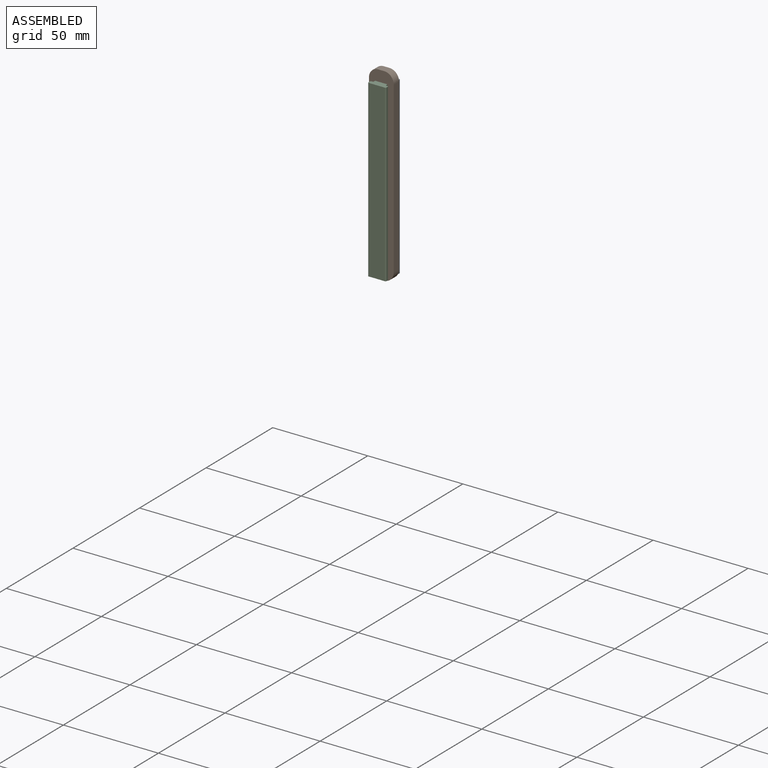
[diagram: assembled view]
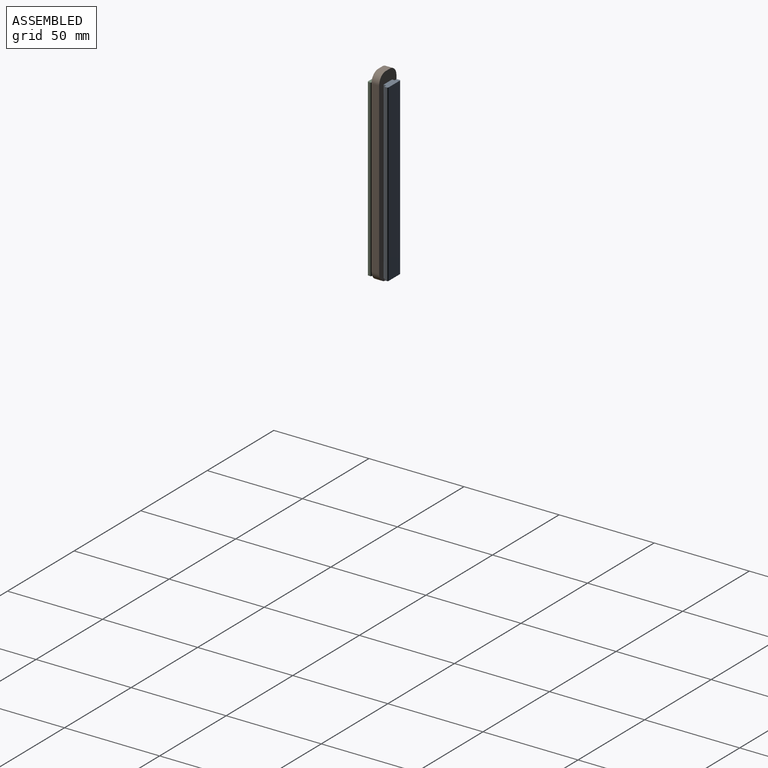
[diagram: assembled view, second angle]
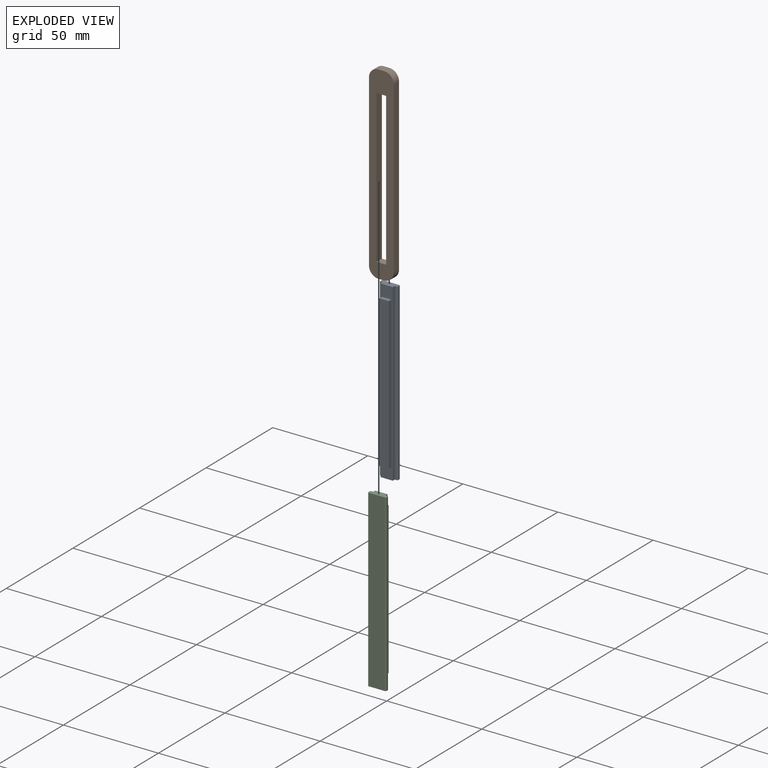
[diagram: exploded view]
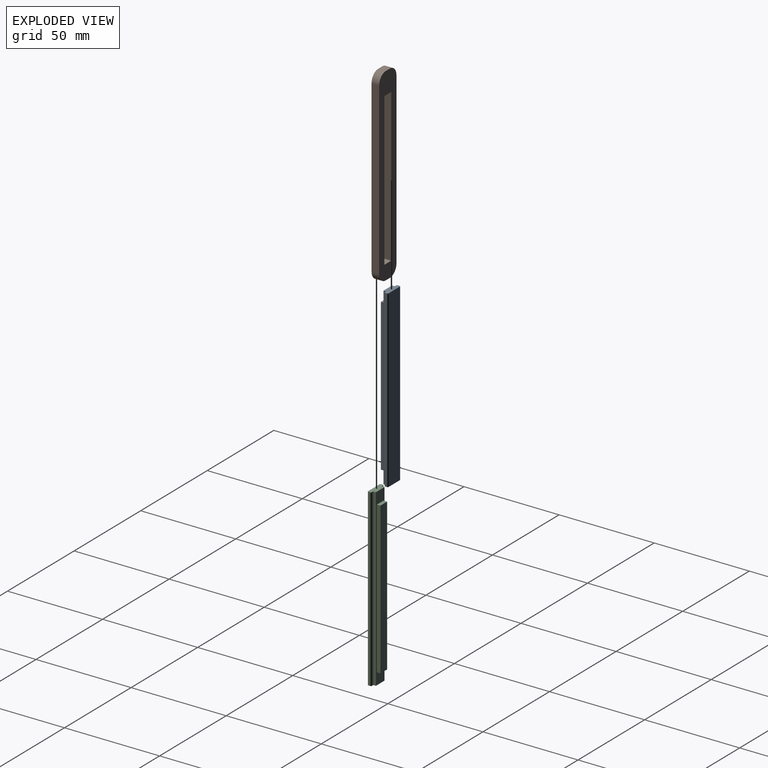
[diagram: exploded view, second angle]
ASSEMBLY  parts=3 mates=2
PART A: 19 faces, bbox 9.5x92x5.3 mm
  f0: plane 92x6.5mm, normal (0,0,-1), area 199.2mm2, adj f6,f7,f12,f13,f14,f15,f16,f17
  f1: plane 92x8.5mm, normal (0,0,1), area 782mm2, adj f2,f11,f12,f13
  f2: cylinder r=0.5mm len=92mm, axis (0,1,0), area 72.3mm2, adj f1,f3,f12,f13
  f3: plane 92x1mm, normal (-1,0,0), area 92mm2, adj f2,f4,f12,f13
  f4: cylinder r=0.5mm len=92mm, axis (0,1,0), area 72.3mm2, adj f3,f5,f12,f13
  f5: plane 92x1mm, normal (0,0,-1), area 92mm2, adj f4,f6,f12,f13
  f6: plane 92x1.4mm, normal (-1,0,0), area 128.8mm2, adj f0,f5,f12,f13
  f7: plane 92x1.4mm, normal (1,0,0), area 128.8mm2, adj f0,f8,f12,f13
  f8: plane 92x1mm, normal (0,0,-1), area 92mm2, adj f7,f9,f12,f13
  f9: cylinder r=0.5mm len=92mm, axis (0,1,0), area 72.3mm2, adj f8,f10,f12,f13
  f10: plane 92x1mm, normal (1,0,0), area 92mm2, adj f9,f11,f12,f13
  f11: cylinder r=0.5mm len=92mm, axis (0,1,0), area 72.3mm2, adj f1,f10,f12,f13
  f12: plane 9.5x3.4mm, normal (0,-1,0), area 27.9mm2, adj f0,f1,f2,f3,f4,f5,f6,f7
  f13: plane 9.5x3.4mm, normal (0,1,0), area 27.9mm2, adj f0,f1,f2,f3,f4,f5,f6,f7
  f14: plane 79.75x1.9mm, normal (-1,0,0), area 151.5mm2, adj f0,f15,f17,f18
  f15: plane 5x1.9mm, normal (0,1,0), area 9.5mm2, adj f0,f14,f16,f18
  f16: plane 79.75x1.9mm, normal (1,0,0), area 151.5mm2, adj f0,f15,f17,f18
  f17: plane 5x1.9mm, normal (0,-1,0), area 9.5mm2, adj f0,f14,f16,f18
  f18: plane 79.75x5mm, normal (0,0,-1), area 398.8mm2, adj f14,f15,f16,f17
PART B: 14 faces, bbox 13x4x99.5 mm
  f0: plane 99.5x13mm, normal (0,-1,0), area 863mm2, adj f2,f3,f4,f5,f6,f7,f8,f9
  f1: plane 99.5x13mm, normal (0,1,0), area 863mm2, adj f2,f3,f4,f5,f6,f7,f8,f9
  f2: plane 4x3mm, normal (0,0,1), area 12mm2, adj f0,f1,f3,f9
  f3: cylinder r=5mm len=5mm, axis (0,1,0), area 31.4mm2, adj f0,f1,f2,f4
  f4: plane 89.5x4mm, normal (-1,0,0), area 358mm2, adj f0,f1,f3,f5
  f5: cylinder r=5mm len=5mm, axis (0,1,0), area 31.4mm2, adj f0,f1,f4,f6
  f6: plane 4x3mm, normal (0,0,-1), area 12mm2, adj f0,f1,f5,f7
  f7: cylinder r=5mm len=5mm, axis (0,1,0), area 31.4mm2, adj f0,f1,f6,f8
  f8: plane 89.5x4mm, normal (1,0,0), area 358mm2, adj f0,f1,f7,f9
  f9: cylinder r=5mm len=5mm, axis (0,1,0), area 31.4mm2, adj f0,f1,f2,f8
  f10: plane 80.2x4mm, normal (1,0,0), area 320.8mm2, adj f0,f1,f11,f13
  f11: plane 5.1x4mm, normal (0,0,1), area 20.4mm2, adj f0,f1,f10,f12
  f12: plane 80.2x4mm, normal (-1,0,0), area 320.8mm2, adj f0,f1,f11,f13
  f13: plane 5.1x4mm, normal (0,0,-1), area 20.4mm2, adj f0,f1,f10,f12
PART C: same geometry as A
PLACE A rot(axis=(-1,0,0),90deg) t=(0,0,-48.08)mm
PLACE B at identity fixed
PLACE C rot(axis=(1,0,0),90deg) t=(0,-4,43.92)mm
MATE fastened A.f15 <-> B.f11  axis (0,0,-1) through (0,0,-41.95)mm
MATE fastened B.f11 <-> C.f17  axis (0,0,1) through (0,-4,-41.95)mm
